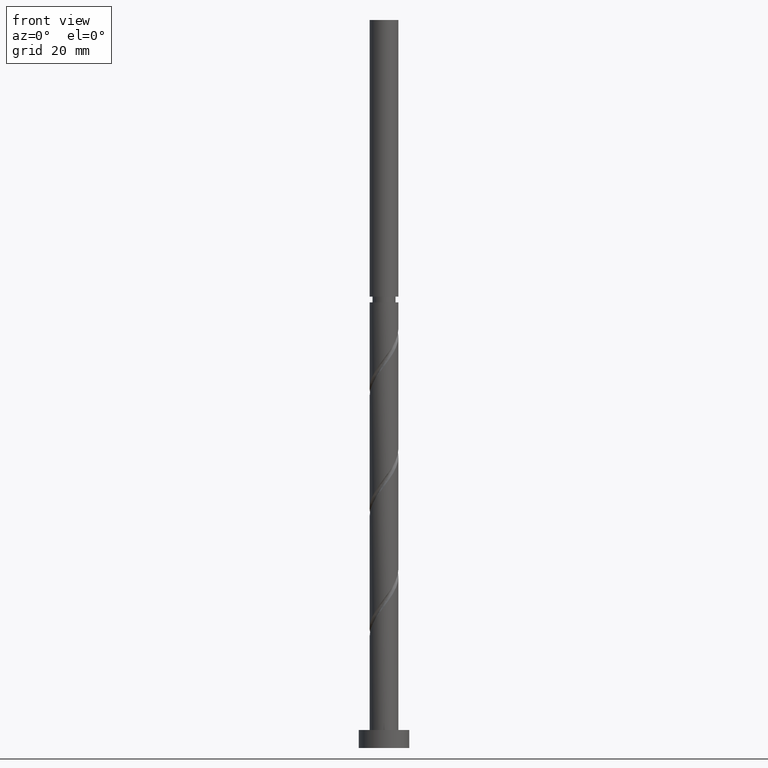
[diagram: clean part render]
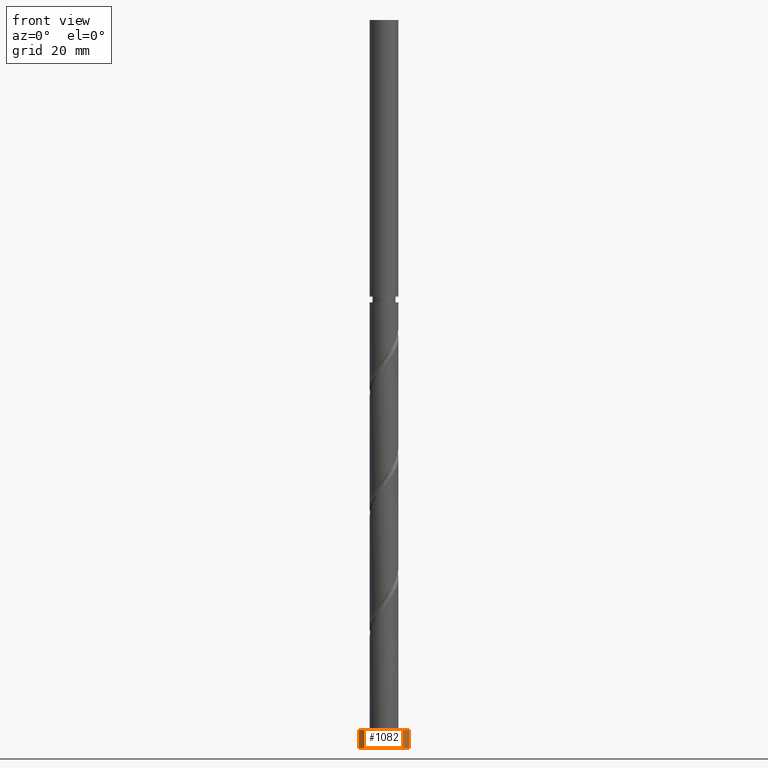
[diagram: same view with one face highlighted and labeled with its STEP entity id]
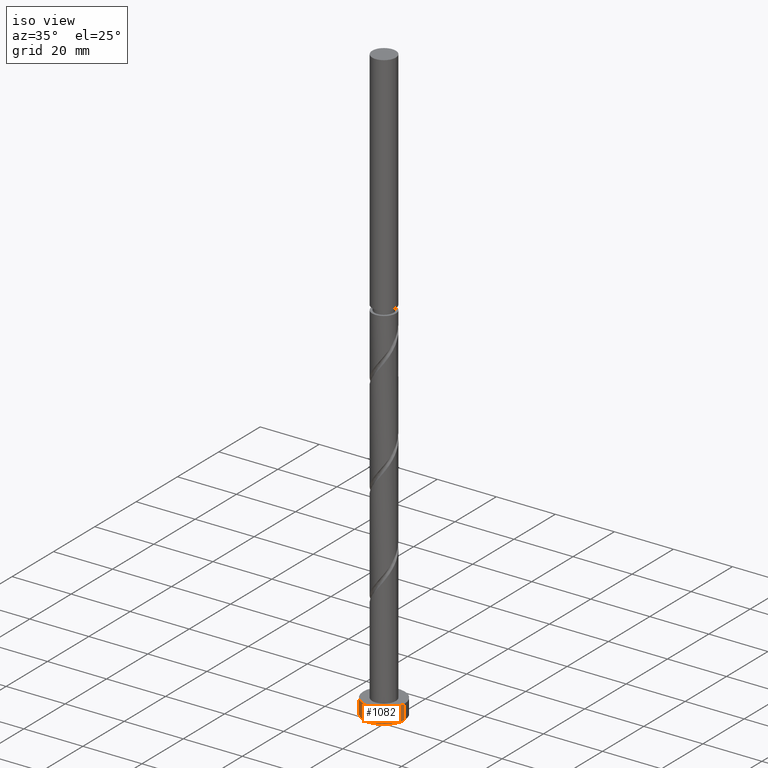
[diagram: same view with one face highlighted and labeled with its STEP entity id]
A machine part, front view. The second image highlights one B-rep face of the part: STEP entity #1082.
A second angle (iso view) of the same face is appended — the face is thin or edge-on in the first view.
In plain terms, the highlighted cylindrical surface (edge-blend (fillet) strip) has radius 7 mm, axis along (-0, -0, -1).
Its self-contained STEP definition (entity closure, byte-faithful):
#58 = EDGE_CURVE ( 'NONE', #1147, #325, #1202, .T. ) ;
#60 = EDGE_CURVE ( 'NONE', #1254, #1147, #127, .T. ) ;
#92 = DIRECTION ( 'NONE',  ( -0.000000000000000000, -0.000000000000000000, -1.000000000000000000 ) ) ;
#127 = CIRCLE ( 'NONE', #676, 7.000000000000000000 ) ;
#191 = EDGE_LOOP ( 'NONE', ( #646, #1265, #883, #1681 ) ) ;
#219 = CARTESIAN_POINT ( 'NONE',  ( -7.000000000000000000, 0.000000000000000000, 0.000000000000000000 ) ) ;
#222 = CARTESIAN_POINT ( 'NONE',  ( 0.000000000000000000, 0.000000000000000000, 5.000000000000000000 ) ) ;
#266 = DIRECTION ( 'NONE',  ( 1.000000000000000000, 0.000000000000000000, 0.000000000000000000 ) ) ;
#325 = VERTEX_POINT ( 'NONE', #1428 ) ;
#332 = VERTEX_POINT ( 'NONE', #219 ) ;
#362 = CARTESIAN_POINT ( 'NONE',  ( -7.000000000000000000, 0.000000000000000000, 5.000000000000000000 ) ) ;
#510 = DIRECTION ( 'NONE',  ( -0.000000000000000000, -0.000000000000000000, -1.000000000000000000 ) ) ;
#646 = ORIENTED_EDGE ( 'NONE', *, *, #58, .F. ) ;
#676 = AXIS2_PLACEMENT_3D ( 'NONE', #977, #833, #709 ) ;
#709 = DIRECTION ( 'NONE',  ( 1.000000000000000000, 0.000000000000000000, 0.000000000000000000 ) ) ;
#785 = CARTESIAN_POINT ( 'NONE',  ( 7.000000000000000000, 8.572527594031473190E-16, 5.000000000000000000 ) ) ;
#833 = DIRECTION ( 'NONE',  ( 0.000000000000000000, 0.000000000000000000, 1.000000000000000000 ) ) ;
#883 = ORIENTED_EDGE ( 'NONE', *, *, #1128, .T. ) ;
#965 = CIRCLE ( 'NONE', #1551, 7.000000000000000000 ) ;
#977 = CARTESIAN_POINT ( 'NONE',  ( 0.000000000000000000, 0.000000000000000000, 5.000000000000000000 ) ) ;
#1021 = FACE_OUTER_BOUND ( 'NONE', #191, .T. ) ;
#1046 = DIRECTION ( 'NONE',  ( -1.000000000000000000, 0.000000000000000000, 0.000000000000000000 ) ) ;
#1052 = VECTOR ( 'NONE', #1648, 1000.000000000000000 ) ;
#1082 = ADVANCED_FACE ( 'NONE', ( #1021 ), #1292, .T. ) ;
#1128 = EDGE_CURVE ( 'NONE', #1254, #332, #1311, .T. ) ;
#1147 = VERTEX_POINT ( 'NONE', #785 ) ;
#1202 = LINE ( 'NONE', #1630, #1052 ) ;
#1254 = VERTEX_POINT ( 'NONE', #1725 ) ;
#1265 = ORIENTED_EDGE ( 'NONE', *, *, #60, .F. ) ;
#1292 = CYLINDRICAL_SURFACE ( 'NONE', #1593, 7.000000000000000000 ) ;
#1311 = LINE ( 'NONE', #362, #1738 ) ;
#1428 = CARTESIAN_POINT ( 'NONE',  ( 7.000000000000000000, 8.572527594031473190E-16, 0.000000000000000000 ) ) ;
#1457 = DIRECTION ( 'NONE',  ( 0.000000000000000000, 0.000000000000000000, 1.000000000000000000 ) ) ;
#1551 = AXIS2_PLACEMENT_3D ( 'NONE', #1594, #1457, #266 ) ;
#1593 = AXIS2_PLACEMENT_3D ( 'NONE', #222, #510, #1046 ) ;
#1594 = CARTESIAN_POINT ( 'NONE',  ( 0.000000000000000000, 0.000000000000000000, 0.000000000000000000 ) ) ;
#1630 = CARTESIAN_POINT ( 'NONE',  ( 7.000000000000000000, 8.572527594031473190E-16, 5.000000000000000000 ) ) ;
#1648 = DIRECTION ( 'NONE',  ( -0.000000000000000000, -0.000000000000000000, -1.000000000000000000 ) ) ;
#1681 = ORIENTED_EDGE ( 'NONE', *, *, #1744, .T. ) ;
#1725 = CARTESIAN_POINT ( 'NONE',  ( -7.000000000000000000, 0.000000000000000000, 5.000000000000000000 ) ) ;
#1738 = VECTOR ( 'NONE', #92, 1000.000000000000000 ) ;
#1744 = EDGE_CURVE ( 'NONE', #332, #325, #965, .T. ) ;